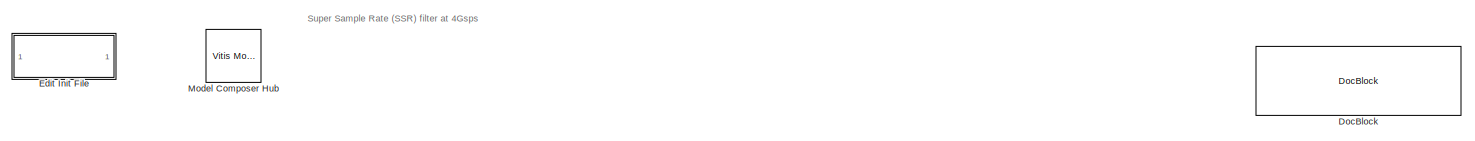
[diagram: root canvas - part 1/3, full width, top band]
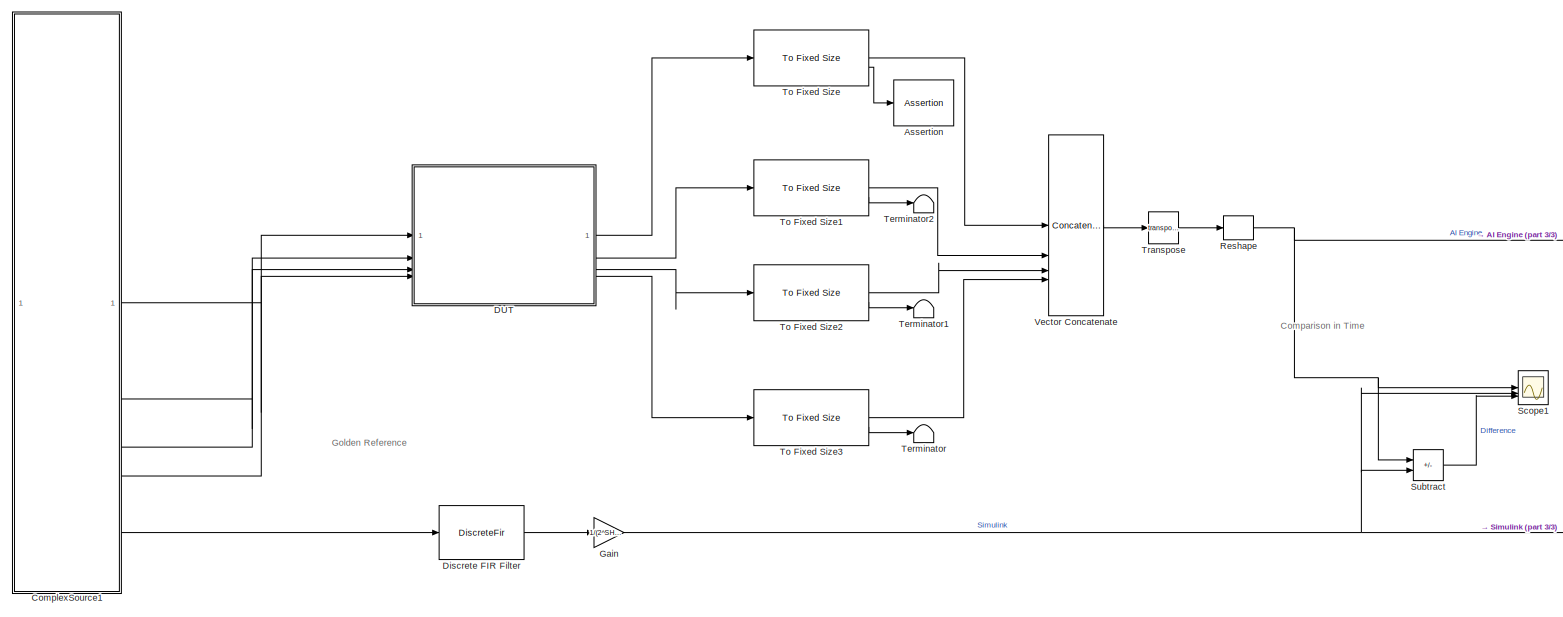
[diagram: root canvas - part 2/3, most of the canvas]
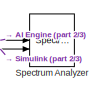
[diagram: root canvas - part 3/3, middle right region]
MODEL slx_73a46569b2dd
KIND model
CONFIG AbsTol = auto
CONFIG EnableMultiTasking = off
CONFIG FixedStep = auto
CONFIG InitFcn = xmcCheckSlxPath(bdroot)\nSSR4_init;\n\n
CONFIG MaxStep = auto
CONFIG MinStep = auto
CONFIG PreLoadFcn = xmcCheckSlxPath(bdroot)\nSSR4_init\n
CONFIG RelTol = 1e-3
CONFIG SampleTimeConstraint = Unconstrained
CONFIG SolverName = VariableStepAuto
CONFIG StartTime = 0.0
CONFIG StopTime = 5000
BLOCK [Assertion] Assertion
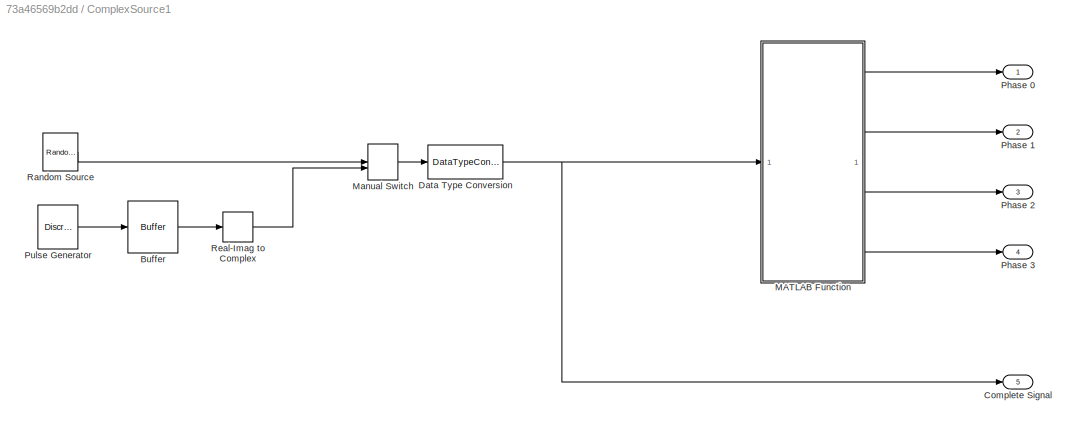
BLOCK [SubSystem] ComplexSource1
BLOCK [Buffer] ComplexSource1/Buffer
  N = N*4
  OutputFrames = off
BLOCK [Outport] ComplexSource1/Complete Signal
  Port = 5
BLOCK [DataTypeConversion] ComplexSource1/Data Type Conversion
  OutDataTypeStr = int16
  RndMeth = Floor
  SaturateOnIntegerOverflow = off
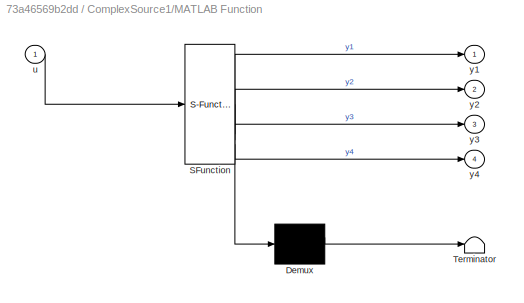
BLOCK [SubSystem] ComplexSource1/MATLAB Function
  ErrorFcn = Stateflow.Translate.translate
  PermitHierarchicalResolution = ExplicitOnly
  SFBlockType = MATLAB Function
  TreatAsAtomicUnit = on
BLOCK [Demux] ComplexSource1/MATLAB Function/ Demux 
  Outputs = 1
BLOCK [S-Function] ComplexSource1/MATLAB Function/ SFunction 
  EnableBusSupport = on
  FunctionName = sf_sfun
  PortCounts = [1 5]
  SFcnIsStateOwnerBlock = off
  SFunctionDeploymentMode = off
  Tag = Stateflow S-Function 1
BLOCK [Terminator] ComplexSource1/MATLAB Function/ Terminator 
BLOCK [Inport] ComplexSource1/MATLAB Function/u
BLOCK [Outport] ComplexSource1/MATLAB Function/y1
BLOCK [Outport] ComplexSource1/MATLAB Function/y2
  Port = 2
BLOCK [Outport] ComplexSource1/MATLAB Function/y3
  Port = 3
BLOCK [Outport] ComplexSource1/MATLAB Function/y4
  Port = 4
BLOCK [ManualSwitch] ComplexSource1/Manual Switch
BLOCK [Outport] ComplexSource1/Phase 0
BLOCK [Outport] ComplexSource1/Phase 1
  Port = 2
BLOCK [Outport] ComplexSource1/Phase 2
  Port = 3
BLOCK [Outport] ComplexSource1/Phase 3
  Port = 4
BLOCK [DiscretePulseGenerator] ComplexSource1/Pulse Generator
  Amplitude = 20000
  Period = 32 + 40*5
  PhaseDelay = 32
  SampleTime = 1/8
BLOCK [Reference] ComplexSource1/Random Source  REF=dspobslib/Random
Source
  SourceBlock = dspobslib/Random\nSource
  SourceType = Random Source Obsolete
  UserDataPersistent = on
BLOCK [RealImagToComplex] ComplexSource1/Real-Imag to Complex
  Input = Real
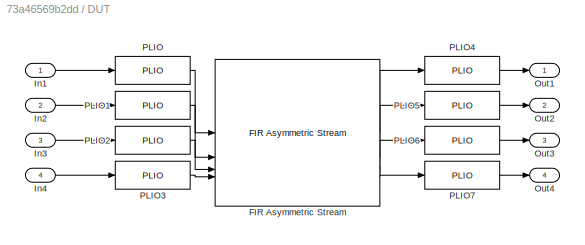
BLOCK [SubSystem] DUT
BLOCK [Reference] DUT/FIR Asymmetric Stream  REF=aieDSP/FIR Asymmetric Stream
  SourceBlock = aieDSP/FIR Asymmetric Stream
  SourceType = FIR Asymmetric Stream
BLOCK [Inport] DUT/In1
BLOCK [Inport] DUT/In2
  Port = 2
BLOCK [Inport] DUT/In3
  Port = 3
BLOCK [Inport] DUT/In4
  Port = 4
BLOCK [Outport] DUT/Out1
BLOCK [Outport] DUT/Out2
  Port = 2
BLOCK [Outport] DUT/Out3
  Port = 3
BLOCK [Outport] DUT/Out4
  Port = 4
BLOCK [Reference] DUT/PLIO  REF=aieBasic/PLIO
  SourceBlock = aieBasic/PLIO
  SourceType = PLIO
BLOCK [Reference] DUT/PLIO1  REF=aieBasic/PLIO
  SourceBlock = aieBasic/PLIO
  SourceType = PLIO
BLOCK [Reference] DUT/PLIO2  REF=aieBasic/PLIO
  SourceBlock = aieBasic/PLIO
  SourceType = PLIO
BLOCK [Reference] DUT/PLIO3  REF=aieBasic/PLIO
  SourceBlock = aieBasic/PLIO
  SourceType = PLIO
BLOCK [Reference] DUT/PLIO4  REF=aieBasic/PLIO
  SourceBlock = aieBasic/PLIO
  SourceType = PLIO
BLOCK [Reference] DUT/PLIO5  REF=aieBasic/PLIO
  SourceBlock = aieBasic/PLIO
  SourceType = PLIO
BLOCK [Reference] DUT/PLIO6  REF=aieBasic/PLIO
  SourceBlock = aieBasic/PLIO
  SourceType = PLIO
BLOCK [Reference] DUT/PLIO7  REF=aieBasic/PLIO
  SourceBlock = aieBasic/PLIO
  SourceType = PLIO
BLOCK [DiscreteFir] Discrete FIR Filter
  Coefficients = Taps
  InputPortMap = u0
  InputProcessing = Columns as channels (frame based)
  OutputPortMap = o0
BLOCK [Reference] DocBlock  REF=simulink/Model-Wide
Utilities/DocBlock
  SourceBlock = simulink/Model-Wide\nUtilities/DocBlock
  SourceType = DocBlock
  UserDataPersistent = on
BLOCK [SubSystem] Edit Init File
  OpenFcn = edit('SSR4_init.m');
BLOCK [Gain] Gain
  Gain = 1/(2^SHIFT_ACC)
BLOCK [Reference] Model Composer Hub  REF=vmcUtilities/Vitis Model Composer Hub
  SourceBlock = vmcUtilities/Vitis Model Composer Hub
  SourceType = VMC Hub
  Tag = genX
  UserDataPersistent = on
BLOCK [Reshape] Reshape
BLOCK [Scope] Scope1
  Floating = off
  NumInputPorts = 3
  ScopeSpecificationString = Simulink.scopes.TimeScopeBlockCfg('CurrentConfiguration', extmgr.ConfigurationSet(extmgr.Configuration('Core','General UI',true,'FigureColor',[0.129411764705882 0.129411764705882 0.129411764705882]),extmgr.Configuration('Core','Source UI',true),extmgr.Configuration('Sources','WiredSimulink',true,'DataLoggingVariableName','ScopeData2'),extmgr.Configuration('Visuals','Time Domain',true,'InputProcess...<+4165ch>
BLOCK [SpectrumAnalyzer] Spectrum Analyzer
  AllowFFTLengthLessThanSamplesPerUpdate = on
  AveragingMethod = Exponential
  ChannelNames = [""]
  DefaultConfigurationName = spbscopes.SpectrumAnalyzerBlockCfg
  GraphicalSettings = {"GraphicalSettings":{"Style":{"BackgroundColor":[0.12941176470588237,0.12941176470588237,0.12941176470588237],"AxesColor":[0,0,0],"LabelsColor":[0.6862745098039216,0.6862745098039216,0.6862745098039216],"PreserveColors":false,"Visible":[true,true],"LineStyle":["-","-"],"LineColor":[[1,1,0.06666666666666667],[0.07450980392156863,0.6235294117647059,1]],"LineWidth":[1,1],"Marker":["none","none"],"Fo...<+934ch>
  Method = Welch
  NumInputPorts = 2
  SampleRate = 8
  ScopeFrameLocation = window
  ScopeSpecificationString = spbscopes.SpectrumAnalyzerBlockCfg('CurrentConfiguration', extmgr.ConfigurationSet(extmgr.Configuration('Core','General UI',true,'FigureColor',[0.16        0.16        0.16]),extmgr.Configuration('Visuals','Spectrum',true,'Title','','YLabel','','MinYLim','-44.0464','MaxYLim','106.8068','Legend',true,'AxesProperties',struct('XGrid',{'on','on'},'YGrid',{'on','on'},'ZGrid',{'on','on'},'Color',{[0 0 0...<+2363ch>
  ShowLegend = on
  Span = 8
  StartFrequency = -4
  StopFrequency = 4
  Visible = on
  WasSavedAsWebScope = on
  WindowPosition = [1494.000000,429.000000,422.000000,270.000000,]
  YLimits = [-16.1576 97.892]
BLOCK [Sum] Subtract
  IconShape = rectangular
  Inputs = +-
BLOCK [Terminator] Terminator
BLOCK [Terminator] Terminator1
BLOCK [Terminator] Terminator2
BLOCK [Reference] To Fixed Size  REF=aieUtilities/To Fixed Size
  SourceBlock = aieUtilities/To Fixed Size
  SourceType = To Fixed Size
BLOCK [Reference] To Fixed Size1  REF=aieUtilities/To Fixed Size
  SourceBlock = aieUtilities/To Fixed Size
  SourceType = To Fixed Size
BLOCK [Reference] To Fixed Size2  REF=aieUtilities/To Fixed Size
  SourceBlock = aieUtilities/To Fixed Size
  SourceType = To Fixed Size
BLOCK [Reference] To Fixed Size3  REF=aieUtilities/To Fixed Size
  SourceBlock = aieUtilities/To Fixed Size
  SourceType = To Fixed Size
BLOCK [Math] Transpose
  Operator = transpose
BLOCK [Concatenate] Vector Concatenate
  ConcatenateDimension = 2
  Mode = Multidimensional array
  NumInputs = 4
ANNOTATION (root): Super Sample Rate (SSR) filter at 4Gsps
ANNOTATION (root): Comparison in Time
ANNOTATION (root): Golden Reference
LINE ComplexSource1/Buffer:1 -> ComplexSource1/Real-Imag to Complex:1
NET ComplexSource1/Data Type Conversion:1 -> ComplexSource1/Complete Signal:1, ComplexSource1/MATLAB Function:1
LINE ComplexSource1/MATLAB Function:1 -> ComplexSource1/Phase 0:1
LINE ComplexSource1/MATLAB Function:2 -> ComplexSource1/Phase 1:1
LINE ComplexSource1/MATLAB Function:3 -> ComplexSource1/Phase 2:1
LINE ComplexSource1/MATLAB Function:4 -> ComplexSource1/Phase 3:1
LINE ComplexSource1/Manual Switch:1 -> ComplexSource1/Data Type Conversion:1
LINE ComplexSource1/Pulse Generator:1 -> ComplexSource1/Buffer:1
LINE ComplexSource1/Random Source:1 -> ComplexSource1/Manual Switch:1
LINE ComplexSource1/Real-Imag to Complex:1 -> ComplexSource1/Manual Switch:2
LINE ComplexSource1:1 -> DUT:1
LINE ComplexSource1:2 -> DUT:2
LINE ComplexSource1:3 -> DUT:3
LINE ComplexSource1:4 -> DUT:4
LINE ComplexSource1:5 -> Discrete FIR Filter:1
LINE DUT/FIR Asymmetric Stream:1 -> DUT/PLIO4:1
LINE DUT/FIR Asymmetric Stream:2 -> DUT/PLIO5:1
LINE DUT/FIR Asymmetric Stream:3 -> DUT/PLIO6:1
LINE DUT/FIR Asymmetric Stream:4 -> DUT/PLIO7:1
LINE DUT/In1:1 -> DUT/PLIO:1
LINE DUT/In2:1 -> DUT/PLIO1:1
LINE DUT/In3:1 -> DUT/PLIO2:1
LINE DUT/In4:1 -> DUT/PLIO3:1
LINE DUT/PLIO1:1 -> DUT/FIR Asymmetric Stream:2
LINE DUT/PLIO2:1 -> DUT/FIR Asymmetric Stream:3
LINE DUT/PLIO3:1 -> DUT/FIR Asymmetric Stream:4
LINE DUT/PLIO4:1 -> DUT/Out1:1
LINE DUT/PLIO5:1 -> DUT/Out2:1
LINE DUT/PLIO6:1 -> DUT/Out3:1
LINE DUT/PLIO7:1 -> DUT/Out4:1
LINE DUT/PLIO:1 -> DUT/FIR Asymmetric Stream:1
LINE DUT:1 -> To Fixed Size:1
LINE DUT:2 -> To Fixed Size1:1
LINE DUT:3 -> To Fixed Size2:1
LINE DUT:4 -> To Fixed Size3:1
LINE Discrete FIR Filter:1 -> Gain:1
NET Gain:1 -> Scope1:2, Spectrum Analyzer:2, Subtract:2
NET Reshape:1 -> Scope1:1, Spectrum Analyzer:1, Subtract:1
LINE Subtract:1 -> Scope1:3
LINE To Fixed Size1:1 -> Vector Concatenate:2
LINE To Fixed Size1:2 -> Terminator2:1
LINE To Fixed Size2:1 -> Vector Concatenate:3
LINE To Fixed Size2:2 -> Terminator1:1
LINE To Fixed Size3:1 -> Vector Concatenate:4
LINE To Fixed Size3:2 -> Terminator:1
LINE To Fixed Size:1 -> Vector Concatenate:1
LINE To Fixed Size:2 -> Assertion:1
LINE Transpose:1 -> Reshape:1
LINE Vector Concatenate:1 -> Transpose:1
note: NET lines group one-source signal fan-out (src -> all destinations, sorted); 1:1 wires keep LINE
CHART ComplexSource1/MATLAB Function states=1 transitions=1
  STATE_LABEL 'eML_blk_kernel()'
  STATE_LABEL 'SCRIPT:\nfunction [y1,y2,y3,y4] = fcn(u)\n\ny1 = u(1:4:end);\ny2 = u(2:4:end);\ny3 = u(3:4:end);\ny4 = u(4:4:end);\n'
CHART  states=0 transitions=0
